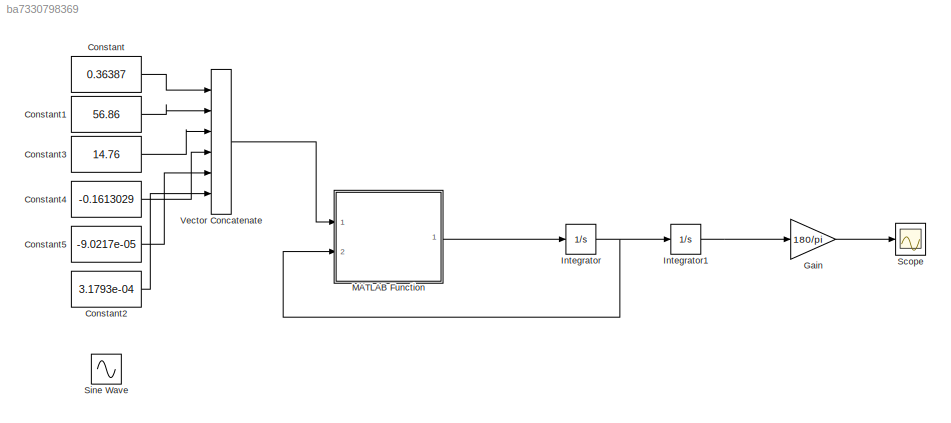
MODEL slx_ba7330798369
KIND model
CONFIG AbsTol = auto
CONFIG EnableMultiTasking = off
CONFIG FixedStep = auto
CONFIG MaxStep = auto
CONFIG MinStep = auto
CONFIG RelTol = 1e-3
CONFIG SampleTimeConstraint = Unconstrained
CONFIG SolverName = VariableStepAuto
CONFIG StartTime = 0.0
CONFIG StopTime = 10.0
BLOCK [Constant] Constant
  Value = 0.36387
BLOCK [Constant] Constant1
  Value = 56.86
BLOCK [Constant] Constant2
  Value = 3.1793e-04
BLOCK [Constant] Constant3
  Value = 14.76
BLOCK [Constant] Constant4
  Value = -0.1613029
BLOCK [Constant] Constant5
  Value = -9.0217e-05
BLOCK [Gain] Gain
  Gain = 180/pi
BLOCK [Integrator] Integrator
  Ports = [1, 1]
BLOCK [Integrator] Integrator1
  Ports = [1, 1]
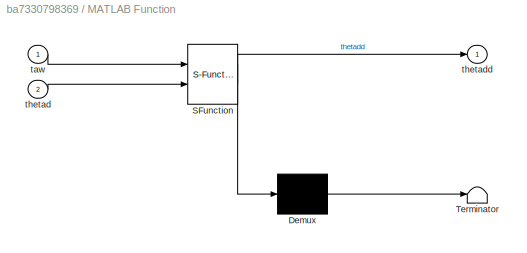
BLOCK [SubSystem] MATLAB Function
  ErrorFcn = Stateflow.Translate.translate
  PermitHierarchicalResolution = ExplicitOnly
  Ports = [2, 1]
  RequestExecContextInheritance = off
  SFBlockType = MATLAB Function
  TreatAsAtomicUnit = on
BLOCK [Demux] MATLAB Function/ Demux 
  Outputs = 1
  Ports = [1, 1]
BLOCK [S-Function] MATLAB Function/ SFunction 
  EnableBusSupport = on
  FunctionName = sf_sfun
  PortCounts = [2 2]
  Ports = [2, 2]
  SFcnIsStateOwnerBlock = off
  SFunctionDeploymentMode = off
  Tag = Stateflow S-Function 2
BLOCK [Terminator] MATLAB Function/ Terminator 
BLOCK [Inport] MATLAB Function/taw
BLOCK [Inport] MATLAB Function/thetad
  Port = 2
BLOCK [Outport] MATLAB Function/thetadd
BLOCK [Scope] Scope
  Floating = off
  NumInputPorts = 1
  Ports = [1]
  ScopeSpecificationString = Simulink.scopes.TimeScopeBlockCfg('CurrentConfiguration', extmgr.ConfigurationSet(extmgr.Configuration('Core','General UI',true),extmgr.Configuration('Core','Source UI',true),extmgr.Configuration('Sources','WiredSimulink',true),extmgr.Configuration('Visuals','Time Domain',true,'SerializedDisplays',{struct('MinYLimReal','-136.26042','MaxYLimReal','730.60693','YLabelReal','','MinYLimMag',' 0.00000',...<+1520ch>
BLOCK [Sin] Sine Wave
  Frequency = 2
  Ports = [0, 1]
  SampleTime = 0
BLOCK [Concatenate] Vector Concatenate
  NumInputs = 6
  Ports = [6, 1]
LINE Constant1:1 -> Vector Concatenate:2
LINE Constant2:1 -> Vector Concatenate:6
LINE Constant3:1 -> Vector Concatenate:3
LINE Constant4:1 -> Vector Concatenate:4
LINE Constant5:1 -> Vector Concatenate:5
LINE Constant:1 -> Vector Concatenate:1
LINE Gain:1 -> Scope:1
LINE Integrator1:1 -> Gain:1
NET Integrator:1 -> Integrator1:1, MATLAB Function:2
LINE MATLAB Function:1 -> Integrator:1
LINE Vector Concatenate:1 -> MATLAB Function:1
note: NET lines group one-source signal fan-out (src -> all destinations, sorted); 1:1 wires keep LINE
CHART MATLAB Function states=1 transitions=1
  STATE_LABEL 'eML_blk_kernel()'
  STATE_LABEL 'SCRIPT:\nfunction thetadd = fcn(taw,thetad)\nM=[-0.514999084951298,0.139627040436924,0.00283580018469198,0.00499999999999812,-0.000649519052839942,0.00121201905283552;-1.77635683940025e-15,-2.31110214770077,-0.624510142736139,0,-0.00129903810567633,-0.000375000000000014;0,-0.185907897700785,-0.203220249999999,0,-0.00129903810567633,-0.000375000000000014;0.000832499999999944,0.00370095956307277,0.005...<+894ch>'
CHART  states=0 transitions=0
